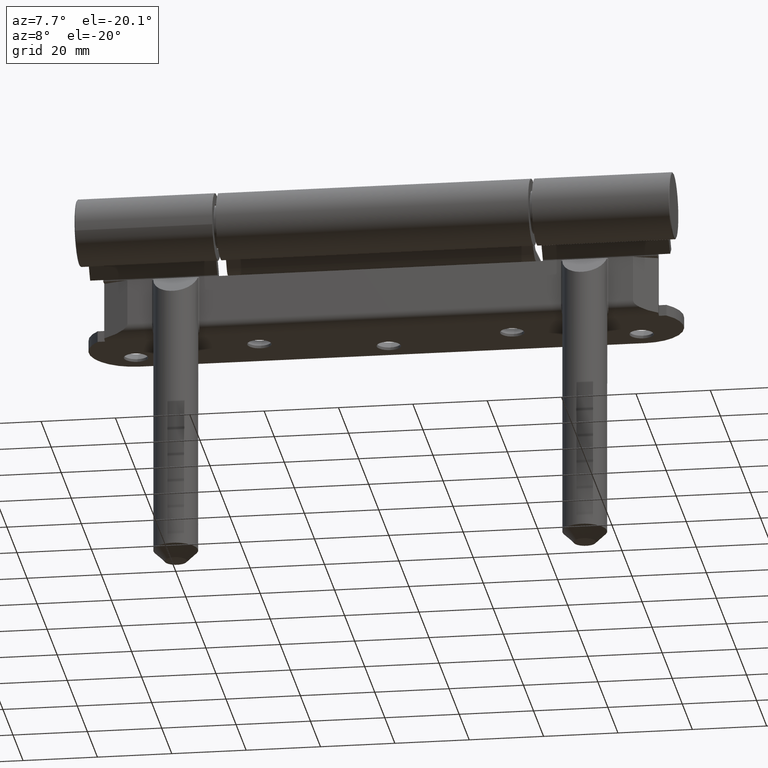
[diagram: clean part render]
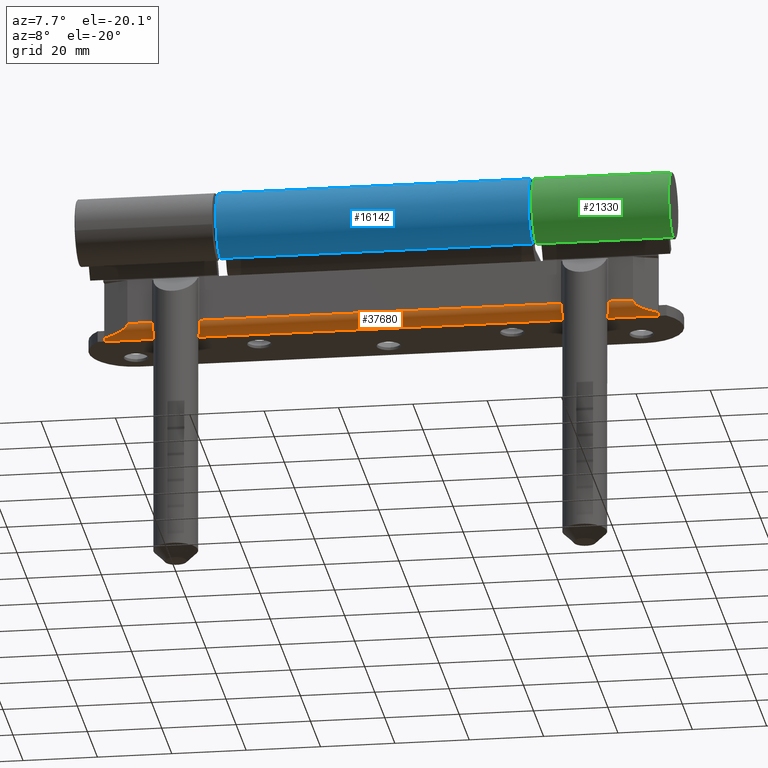
[diagram: same view with three faces highlighted in distinct colors, each labeled with its STEP entity id]
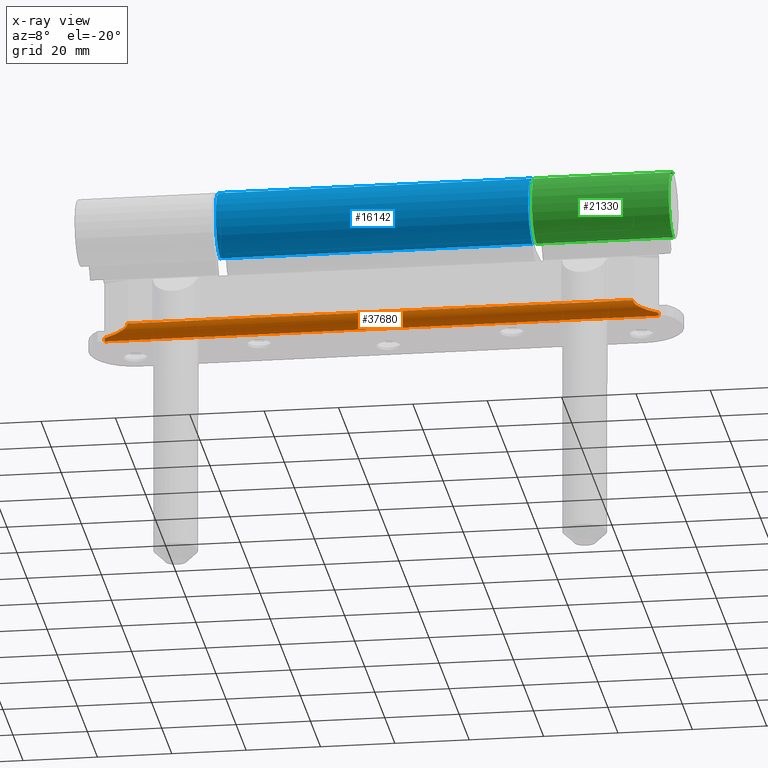
[diagram: x-ray of the same camera — body ghosted, the three highlighted faces saturated]
A machine part, auxiliary view with three faces highlighted in distinct colors.
The next image is the same camera in x-ray (body ghosted, the three faces saturated) — at least one of them is partly hidden behind the body in this view.
Their STEP definitions:

[orange] entity #37680 — the highlighted cylindrical surface (edge-blend (fillet) strip) has radius 3.5 mm, axis along (-1, 0, -0).
#86 = CARTESIAN_POINT ( 'NONE',  ( -24.00000000000011369, 67.99999999999997158, 2.109208805004634701 ) ) ;
#2798 = EDGE_CURVE ( 'NONE', #35064, #27683, #20132, .T. ) ;
#2951 = ORIENTED_EDGE ( 'NONE', *, *, #2798, .T. ) ;
#3434 = DIRECTION ( 'NONE',  ( 0.000000000000000000, 0.000000000000000000, 1.000000000000000000 ) ) ;
#3467 = CARTESIAN_POINT ( 'NONE',  ( -24.00000000000013856, 67.99999999999997158, 3.500000000000006661 ) ) ;
#3594 = CARTESIAN_POINT ( 'NONE',  ( -22.00000000000009592, 74.49999999999998579, 0.3377223398316180902 ) ) ;
#3678 = DIRECTION ( 'NONE',  ( 6.463117025072475944E-31, -1.000000000000000000, -1.035379938102577995E-30 ) ) ;
#4089 = EDGE_CURVE ( 'NONE', #7990, #44505, #16698, .T. ) ;
#4208 = AXIS2_PLACEMENT_3D ( 'NONE', #24887, #20318, #3434 ) ;
#7183 = CARTESIAN_POINT ( 'NONE',  ( -20.50000000000009592, 74.49999999999998579, 3.499999999999999556 ) ) ;
#7990 = VERTEX_POINT ( 'NONE', #3467 ) ;
#8789 = CYLINDRICAL_SURFACE ( 'NONE', #4208, 3.500000000000013323 ) ;
#9833 = LINE ( 'NONE', #38439, #13419 ) ;
#10081 = EDGE_CURVE ( 'NONE', #18002, #22606, #32978, .T. ) ;
#10091 = DIRECTION ( 'NONE',  ( 6.463117025072475944E-31, -1.000000000000000000, -1.035379938102577995E-30 ) ) ;
#11803 =( BOUNDED_CURVE ( )  B_SPLINE_CURVE ( 3, ( #3594, #15635, #86, #17144 ),
 .UNSPECIFIED., .F., .F. ) 
 B_SPLINE_CURVE_WITH_KNOTS ( ( 4, 4 ),
 ( 2.013707370868533353, 3.141592653589793116 ),
 .UNSPECIFIED. ) 
 CURVE ( )  GEOMETRIC_REPRESENTATION_ITEM ( )  RATIONAL_B_SPLINE_CURVE ( ( 1.000000000000000000, 0.8967695031523439386, 0.8967695031523439386, 1.000000000000000000 ) ) 
 REPRESENTATION_ITEM ( '' )  );
#13419 = VECTOR ( 'NONE', #10091, 1000.000000000000000 ) ;
#15157 = CARTESIAN_POINT ( 'NONE',  ( -20.50000000000009592, -74.50000000000001421, 3.500000000000003109 ) ) ;
#15556 = CARTESIAN_POINT ( 'NONE',  ( -23.25659083596945820, -70.41607978309959037, 0.9337757091153449096 ) ) ;
#15635 = CARTESIAN_POINT ( 'NONE',  ( -23.25659083596946175, 70.41607978309960458, 0.9337757091153385813 ) ) ;
#16385 = CARTESIAN_POINT ( 'NONE',  ( -24.00000000000013856, -67.99999999999994316, 3.499999999999991118 ) ) ;
#16698 = LINE ( 'NONE', #50112, #17700 ) ;
#16726 = AXIS2_PLACEMENT_3D ( 'NONE', #7183, #3678, #23771 ) ;
#17144 = CARTESIAN_POINT ( 'NONE',  ( -24.00000000000013856, 67.99999999999997158, 3.500000000000006661 ) ) ;
#17614 =( BOUNDED_CURVE ( )  B_SPLINE_CURVE ( 3, ( #47418, #44189, #15556, #43393 ),
 .UNSPECIFIED., .F., .F. ) 
 B_SPLINE_CURVE_WITH_KNOTS ( ( 4, 4 ),
 ( 0.000000000000000000, 1.127885282721258653 ),
 .UNSPECIFIED. ) 
 CURVE ( )  GEOMETRIC_REPRESENTATION_ITEM ( )  RATIONAL_B_SPLINE_CURVE ( ( 1.000000000000000000, 0.8967695031523442717, 0.8967695031523442717, 1.000000000000000000 ) ) 
 REPRESENTATION_ITEM ( '' )  );
#17700 = VECTOR ( 'NONE', #46120, 1000.000000000000000 ) ;
#18002 = VERTEX_POINT ( 'NONE', #37962 ) ;
#18125 = ORIENTED_EDGE ( 'NONE', *, *, #10081, .T. ) ;
#19472 = EDGE_CURVE ( 'NONE', #44505, #27683, #17614, .T. ) ;
#19535 = ORIENTED_EDGE ( 'NONE', *, *, #33053, .T. ) ;
#20132 = CIRCLE ( 'NONE', #31197, 3.500000000000013323 ) ;
#20318 = DIRECTION ( 'NONE',  ( -6.463117025072475944E-31, 1.000000000000000000, 1.035379938102577995E-30 ) ) ;
#21782 = ORIENTED_EDGE ( 'NONE', *, *, #19472, .F. ) ;
#22606 = VERTEX_POINT ( 'NONE', #49732 ) ;
#23369 = CARTESIAN_POINT ( 'NONE',  ( -20.50000000000009592, -74.49999999999995737, 1.734723475976807094E-15 ) ) ;
#23771 = DIRECTION ( 'NONE',  ( 0.000000000000000000, 0.000000000000000000, -1.000000000000000000 ) ) ;
#24887 = CARTESIAN_POINT ( 'NONE',  ( -20.50000000000008882, -149.0633073710665997, 3.500000000000004885 ) ) ;
#27418 = ORIENTED_EDGE ( 'NONE', *, *, #42124, .F. ) ;
#27683 = VERTEX_POINT ( 'NONE', #35262 ) ;
#31197 = AXIS2_PLACEMENT_3D ( 'NONE', #15157, #51542, #52070 ) ;
#32855 = EDGE_LOOP ( 'NONE', ( #21782, #38269, #27418, #18125, #19535, #2951 ) ) ;
#32978 = CIRCLE ( 'NONE', #16726, 3.500000000000013323 ) ;
#33053 = EDGE_CURVE ( 'NONE', #22606, #35064, #9833, .T. ) ;
#35064 = VERTEX_POINT ( 'NONE', #23369 ) ;
#35262 = CARTESIAN_POINT ( 'NONE',  ( -22.00000000000009592, -74.49999999999995737, 0.3377223398316198111 ) ) ;
#37680 = ADVANCED_FACE ( 'NONE', ( #52934 ), #8789, .T. ) ;
#37962 = CARTESIAN_POINT ( 'NONE',  ( -22.00000000000009592, 74.49999999999998579, 0.3377223398316180902 ) ) ;
#38269 = ORIENTED_EDGE ( 'NONE', *, *, #4089, .F. ) ;
#38439 = CARTESIAN_POINT ( 'NONE',  ( -20.50000000000009592, 80.00000000000001421, -5.204170427930421283E-15 ) ) ;
#42124 = EDGE_CURVE ( 'NONE', #18002, #7990, #11803, .T. ) ;
#43393 = CARTESIAN_POINT ( 'NONE',  ( -22.00000000000009592, -74.49999999999995737, 0.3377223398316198111 ) ) ;
#44189 = CARTESIAN_POINT ( 'NONE',  ( -24.00000000000011369, -67.99999999999997158, 2.109208805004640475 ) ) ;
#44505 = VERTEX_POINT ( 'NONE', #16385 ) ;
#46120 = DIRECTION ( 'NONE',  ( 6.463117025072475944E-31, -1.000000000000000000, -1.035379938102577995E-30 ) ) ;
#47418 = CARTESIAN_POINT ( 'NONE',  ( -24.00000000000013856, -67.99999999999994316, 3.499999999999991118 ) ) ;
#49732 = CARTESIAN_POINT ( 'NONE',  ( -20.50000000000009592, 74.49999999999998579, -6.938893903907228378E-15 ) ) ;
#50112 = CARTESIAN_POINT ( 'NONE',  ( -24.00000000000013856, 80.00000000000001421, 3.499999999999989342 ) ) ;
#51542 = DIRECTION ( 'NONE',  ( -6.463117025072475944E-31, 1.000000000000000000, 1.035379938102577995E-30 ) ) ;
#52070 = DIRECTION ( 'NONE',  ( 0.000000000000000000, 0.000000000000000000, -1.000000000000000000 ) ) ;
#52934 = FACE_OUTER_BOUND ( 'NONE', #32855, .T. ) ;

[blue] entity #16142 — the highlighted cylindrical surface (edge-blend (fillet) strip) has radius 9 mm, axis along (1, -0, -0).
#6037 = EDGE_CURVE ( 'NONE', #51988, #42153, #23936, .T. ) ;
#8355 = CARTESIAN_POINT ( 'NONE',  ( -42.00000000000000000, 0.000000000000000000, -1.387778780781445676E-14 ) ) ;
#9972 = VECTOR ( 'NONE', #12445, 1000.000000000000000 ) ;
#10069 = DIRECTION ( 'NONE',  ( 1.000000000000000000, -7.844908346797035449E-31, 1.133987551255204470E-30 ) ) ;
#12236 = VERTEX_POINT ( 'NONE', #16410 ) ;
#12445 = DIRECTION ( 'NONE',  ( 1.000000000000000000, -7.844908346797035449E-31, 1.133987551255204470E-30 ) ) ;
#13207 = DIRECTION ( 'NONE',  ( 1.000000000000000000, -7.844908346797035449E-31, 1.133987551255204470E-30 ) ) ;
#13235 = DIRECTION ( 'NONE',  ( 1.000000000000000000, -7.844908346797035449E-31, 1.133987551255204470E-30 ) ) ;
#15663 = AXIS2_PLACEMENT_3D ( 'NONE', #45370, #13235, #29076 ) ;
#16102 = DIRECTION ( 'NONE',  ( 0.000000000000000000, 0.000000000000000000, -1.000000000000000000 ) ) ;
#16142 = ADVANCED_FACE ( 'NONE', ( #18088 ), #37910, .T. ) ;
#16410 = CARTESIAN_POINT ( 'NONE',  ( 42.00000000000001421, 1.102182119232660904E-15, 9.000000000000001776 ) ) ;
#17303 = CARTESIAN_POINT ( 'NONE',  ( 42.00000000000001421, 0.000000000000000000, -8.999999999999998224 ) ) ;
#18088 = FACE_OUTER_BOUND ( 'NONE', #35547, .T. ) ;
#18452 = ORIENTED_EDGE ( 'NONE', *, *, #44160, .F. ) ;
#19632 = ORIENTED_EDGE ( 'NONE', *, *, #50710, .F. ) ;
#20701 = VERTEX_POINT ( 'NONE', #17303 ) ;
#22636 = CARTESIAN_POINT ( 'NONE',  ( -42.00000000000000000, 0.000000000000000000, -9.000000000000012434 ) ) ;
#23936 = CIRCLE ( 'NONE', #34168, 9.000000000000000000 ) ;
#29076 = DIRECTION ( 'NONE',  ( 0.000000000000000000, 0.000000000000000000, -1.000000000000000000 ) ) ;
#29372 = CIRCLE ( 'NONE', #15663, 9.000000000000000000 ) ;
#30180 = VECTOR ( 'NONE', #13207, 1000.000000000000000 ) ;
#33566 = CARTESIAN_POINT ( 'NONE',  ( 55.00000000000000000, 0.000000000000000000, -8.999999999999998224 ) ) ;
#34168 = AXIS2_PLACEMENT_3D ( 'NONE', #8355, #45531, #16102 ) ;
#35547 = EDGE_LOOP ( 'NONE', ( #46229, #47112, #19632, #18452 ) ) ;
#36522 = CARTESIAN_POINT ( 'NONE',  ( -42.00000000000000000, 1.102182119232659721E-15, 8.999999999999985789 ) ) ;
#36800 = LINE ( 'NONE', #33566, #30180 ) ;
#37910 = CYLINDRICAL_SURFACE ( 'NONE', #46078, 9.000000000000000000 ) ;
#42153 = VERTEX_POINT ( 'NONE', #36522 ) ;
#42710 = DIRECTION ( 'NONE',  ( 0.000000000000000000, 0.000000000000000000, -1.000000000000000000 ) ) ;
#44160 = EDGE_CURVE ( 'NONE', #51988, #20701, #36800, .T. ) ;
#45370 = CARTESIAN_POINT ( 'NONE',  ( 42.00000000000001421, 0.000000000000000000, 1.734723475976807094E-15 ) ) ;
#45531 = DIRECTION ( 'NONE',  ( 1.000000000000000000, -7.844908346797035449E-31, 1.133987551255204470E-30 ) ) ;
#46078 = AXIS2_PLACEMENT_3D ( 'NONE', #49934, #10069, #42710 ) ;
#46229 = ORIENTED_EDGE ( 'NONE', *, *, #6037, .T. ) ;
#47112 = ORIENTED_EDGE ( 'NONE', *, *, #47991, .T. ) ;
#47991 = EDGE_CURVE ( 'NONE', #42153, #12236, #49110, .T. ) ;
#48024 = CARTESIAN_POINT ( 'NONE',  ( 55.00000000000000000, 1.102182119232617714E-15, 9.000000000000001776 ) ) ;
#49110 = LINE ( 'NONE', #48024, #9972 ) ;
#49934 = CARTESIAN_POINT ( 'NONE',  ( 55.00000000000000000, 0.000000000000000000, 1.734723475976807094E-15 ) ) ;
#50710 = EDGE_CURVE ( 'NONE', #20701, #12236, #29372, .T. ) ;
#51988 = VERTEX_POINT ( 'NONE', #22636 ) ;

[green] entity #21330 — the highlighted cylindrical surface (edge-blend (fillet) strip) has radius 9 mm, axis along (-1, -0, -0).
#478 = CARTESIAN_POINT ( 'NONE',  ( 36.80000000000001137, 1.102182119232621658E-15, -8.999999999999984013 ) ) ;
#763 = DIRECTION ( 'NONE',  ( -1.000000000000000000, -5.610155771161907473E-31, -6.170407202813867864E-31 ) ) ;
#2457 = AXIS2_PLACEMENT_3D ( 'NONE', #50746, #17063, #30184 ) ;
#3570 = EDGE_LOOP ( 'NONE', ( #44838, #52500, #8194, #14799 ) ) ;
#5038 = VERTEX_POINT ( 'NONE', #478 ) ;
#8194 = ORIENTED_EDGE ( 'NONE', *, *, #33621, .T. ) ;
#8702 = CARTESIAN_POINT ( 'NONE',  ( 25.49999999999999645, 0.000000000000000000, 9.000000000000007105 ) ) ;
#10941 = DIRECTION ( 'NONE',  ( 0.000000000000000000, 0.000000000000000000, 1.000000000000000000 ) ) ;
#11898 = CIRCLE ( 'NONE', #2457, 9.000000000000007105 ) ;
#12703 = LINE ( 'NONE', #8702, #29732 ) ;
#13249 = AXIS2_PLACEMENT_3D ( 'NONE', #31301, #47602, #10941 ) ;
#14799 = ORIENTED_EDGE ( 'NONE', *, *, #37752, .F. ) ;
#15517 = CARTESIAN_POINT ( 'NONE',  ( 25.49999999999999645, 1.102182119232618503E-15, -9.000000000000007105 ) ) ;
#16092 = CARTESIAN_POINT ( 'NONE',  ( 25.49999999999999645, 0.000000000000000000, 0.000000000000000000 ) ) ;
#17063 = DIRECTION ( 'NONE',  ( -1.000000000000000000, -5.610155771161907473E-31, -6.170407202813867864E-31 ) ) ;
#17325 = CARTESIAN_POINT ( 'NONE',  ( 36.80000000000001137, 5.204170427930421283E-15, 9.000000000000019540 ) ) ;
#20674 = FACE_OUTER_BOUND ( 'NONE', #3570, .T. ) ;
#20967 = CIRCLE ( 'NONE', #13249, 9.000000000000007105 ) ;
#21330 = ADVANCED_FACE ( 'NONE', ( #20674 ), #28950, .T. ) ;
#23880 = DIRECTION ( 'NONE',  ( -1.000000000000000000, -5.610155771161907473E-31, -6.170407202813867864E-31 ) ) ;
#25728 = EDGE_CURVE ( 'NONE', #5038, #48758, #35876, .T. ) ;
#26729 = CARTESIAN_POINT ( 'NONE',  ( 5.645497952523911972E-30, 0.000000000000000000, 9.000000000000007105 ) ) ;
#28440 = DIRECTION ( 'NONE',  ( 0.000000000000000000, 0.000000000000000000, 1.000000000000000000 ) ) ;
#28950 = CYLINDRICAL_SURFACE ( 'NONE', #31688, 9.000000000000007105 ) ;
#29732 = VECTOR ( 'NONE', #38121, 1000.000000000000000 ) ;
#30184 = DIRECTION ( 'NONE',  ( 6.272775502804341478E-31, 0.000000000000000000, 1.000000000000000000 ) ) ;
#31301 = CARTESIAN_POINT ( 'NONE',  ( 36.80000000000001137, 5.204170427930421283E-15, 1.387778780781445676E-14 ) ) ;
#31688 = AXIS2_PLACEMENT_3D ( 'NONE', #16092, #23880, #28440 ) ;
#33130 = CARTESIAN_POINT ( 'NONE',  ( 5.553366482532480465E-30, 1.102182119232613967E-15, -9.000000000000000000 ) ) ;
#33621 = EDGE_CURVE ( 'NONE', #36560, #47384, #12703, .T. ) ;
#35876 = LINE ( 'NONE', #15517, #48077 ) ;
#36560 = VERTEX_POINT ( 'NONE', #17325 ) ;
#37752 = EDGE_CURVE ( 'NONE', #48758, #47384, #11898, .T. ) ;
#38121 = DIRECTION ( 'NONE',  ( -1.000000000000000000, -5.610155771161907473E-31, -6.170407202813867864E-31 ) ) ;
#44838 = ORIENTED_EDGE ( 'NONE', *, *, #25728, .F. ) ;
#47384 = VERTEX_POINT ( 'NONE', #26729 ) ;
#47602 = DIRECTION ( 'NONE',  ( -1.000000000000000000, -5.610155771161907473E-31, -6.170407202813867864E-31 ) ) ;
#48077 = VECTOR ( 'NONE', #763, 1000.000000000000000 ) ;
#48758 = VERTEX_POINT ( 'NONE', #33130 ) ;
#50746 = CARTESIAN_POINT ( 'NONE',  ( 0.000000000000000000, 0.000000000000000000, 0.000000000000000000 ) ) ;
#52500 = ORIENTED_EDGE ( 'NONE', *, *, #52941, .T. ) ;
#52941 = EDGE_CURVE ( 'NONE', #5038, #36560, #20967, .T. ) ;